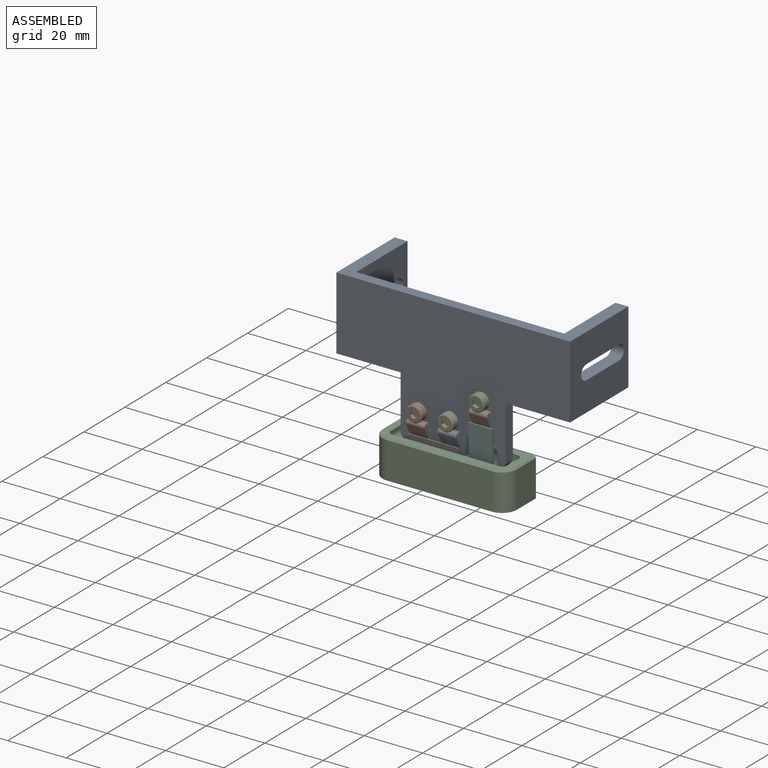
[diagram: assembled view]
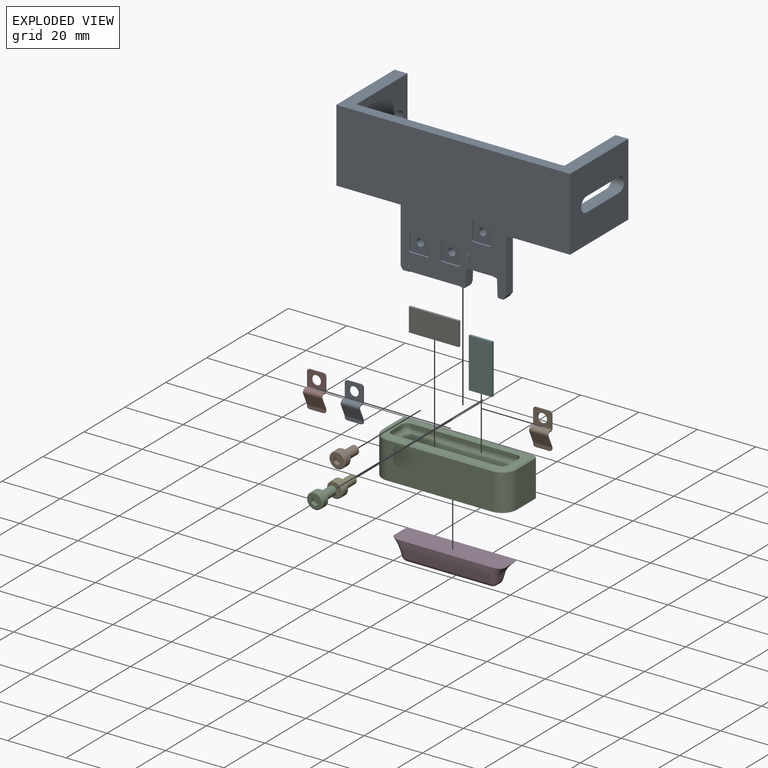
[diagram: exploded view]
GUIDED TOUR — MATED ASSEMBLY (Onshape document 838249ab933d371dc11ed068, AutoMate assembly 838249ab933d371dc11ed068_ae383e864f804d53fed47717_d57fe158612e764473231b34_default)

This assembly has 11 components, labeled P0..P10 below (a component is one placed occurrence of a part; the same part can appear more than once), held together by 10 mates. A mate is a constraint between two components; its type names the relative motion it leaves free:
  FASTENED — locks the two components together rigidly (no relative motion).
Axis/direction vectors are unit vectors and 'through' points are millimeter coordinates, both in the assembly's world frame.

MATES
  1. FASTENED "緊固 7": P10 <-> P1, direction (0.000, 1.000, 0.000) through (9.72, -19.17, -11.49) mm
  2. FASTENED "緊固 3": P8 <-> P0, direction (0.000, 1.000, 0.000) through (-0.88, -18.77, -20.49) mm
  3. FASTENED "緊固 4": P1 <-> P0, direction (0.000, 1.000, 0.000) through (9.72, -18.77, -11.49) mm
  4. FASTENED "緊固 10": P3 <-> P2, direction (0.000, 0.000, -1.000) through (0.02, -19.57, -38.09) mm
  5. FASTENED "緊固 8": P0 <-> P5, direction (0.000, -1.000, 0.000) through (9.72, -19.07, -19.19) mm
  6. FASTENED "緊固 2": P7 <-> P0, direction (0.000, 1.000, 0.000) through (-11.68, -18.77, -20.49) mm
  7. FASTENED "緊固 6": P4 <-> P8, direction (0.000, 1.000, 0.000) through (-0.88, -19.17, -20.39) mm
  8. FASTENED "緊固 5": P9 <-> P7, direction (0.000, 1.000, 0.000) through (-11.68, -19.17, -20.49) mm
  9. FASTENED "緊固 1": P6 <-> P0, direction (0.000, 1.000, 0.000) through (-6.28, -19.07, -28.19) mm
  10. FASTENED "緊固 9": P2 <-> P0, direction (0.000, 0.000, 1.000) through (0.02, -23.07, -28.09) mm

ASSEMBLY ORDER
  1. P2 — the base component [order heuristic]
  2. P3 — core [order heuristic]
  3. P6 [order verified]
  4. P4 [order verified]
  5. P8 [order verified]
  6. P5 [order verified]
  7. P10 [order verified]
  8. P1 [order verified]
  9. P9 [order verified]
  10. P7 [order verified]
  11. P0 [order verified]
Order-tag legend:
  [order verified] — this step's position reverses a verified removal order: the component was checked to insert without passing through the ones already placed.
  [order heuristic] — the first 2 components form the assembly's core: parts whose collision-free extraction could not be verified, listed in mate-graph order.

Of the 11 components, 3 carry the full construction recipe — the FeatureScript program that regenerates the part's solid from scratch; the rest are supplied as boundary geometry only.
Each toured component is shown spotlighted twice — in the assembled view, then in the exploded view, where a leader line traces a displaced component back to its assembled socket (saturated green if recipe-attached, orange if geometry-only; every other component desaturated gray) — followed by its recipe or geometry summary and the mates that hold it.
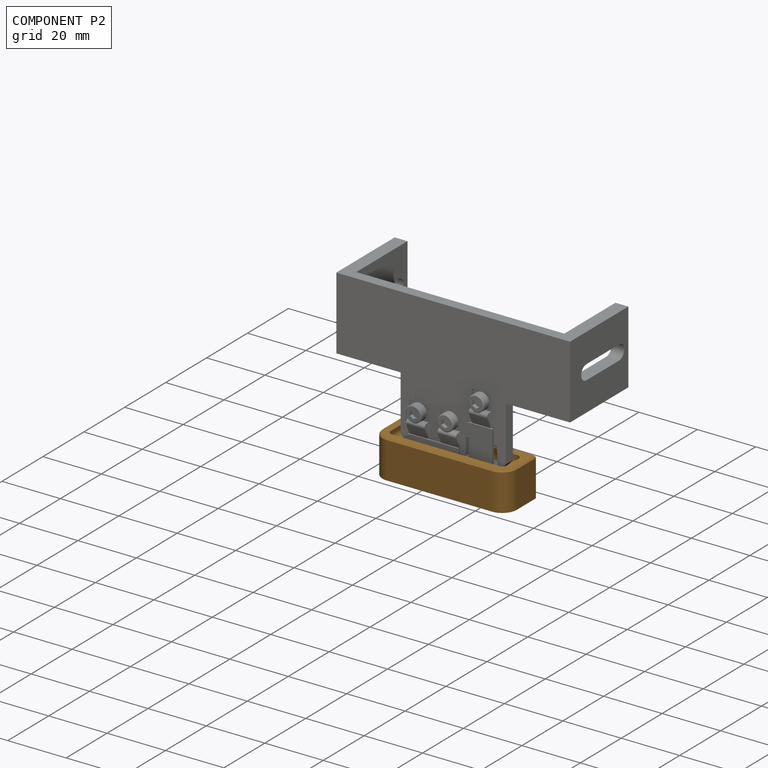
[diagram: component P2 — assembled]
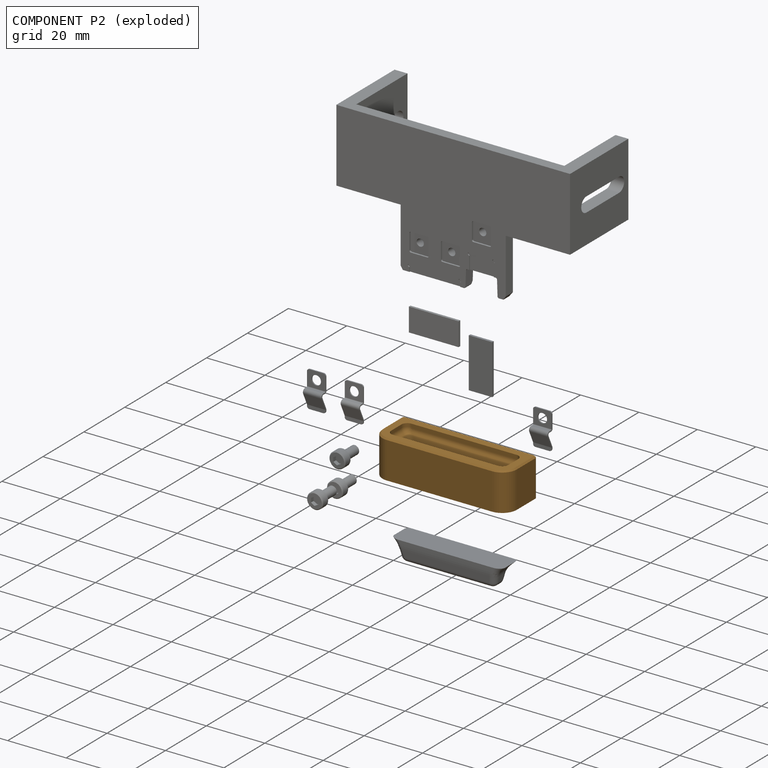
[diagram: component P2 — exploded]
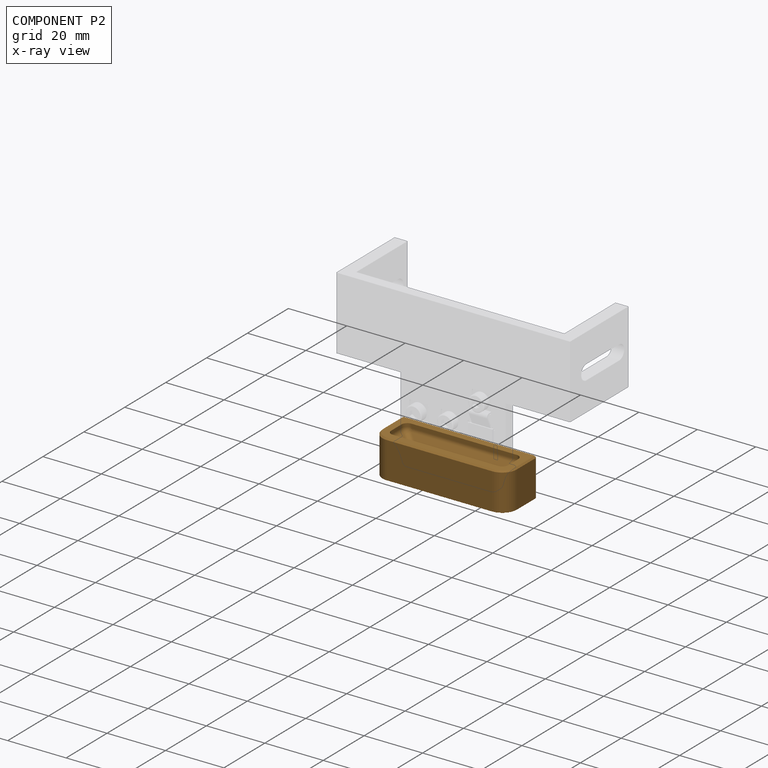
[diagram: component P2 — x-ray view]
COMPONENT P2 — geometry summary (no construction recipe available for this part):
  bounding box: 46.0 x 15.0 x 13.0 mm
  B-rep topology: 1 solid, 77 faces, 346 edges
  volume: 6275 mm^3 (70% of its bounding box)
  symmetry: mirror-symmetric across its x mid-plane
Held by: FASTENED mate "緊固 10" to P3; FASTENED mate "緊固 9" to P0.
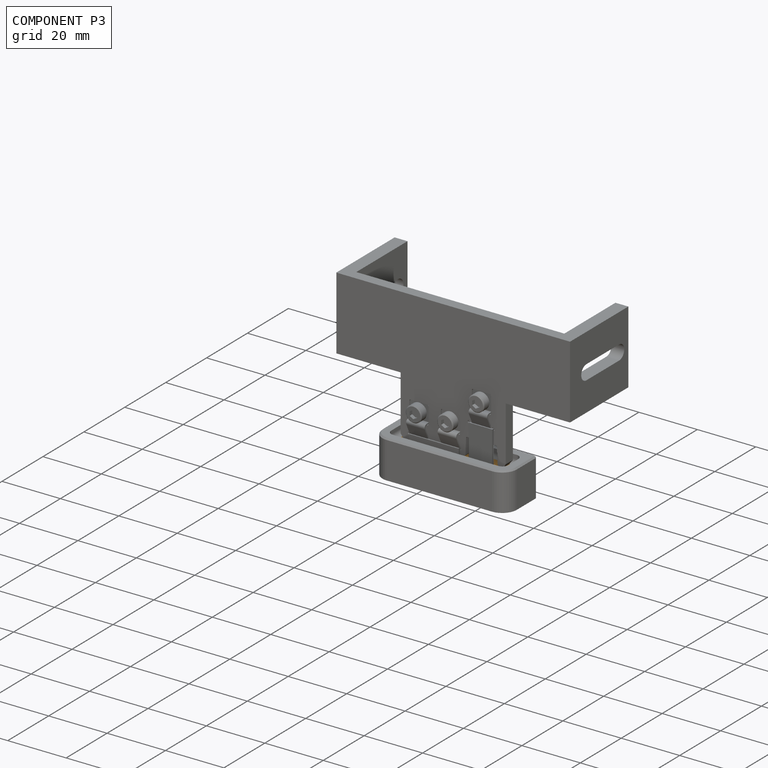
[diagram: component P3 — assembled]
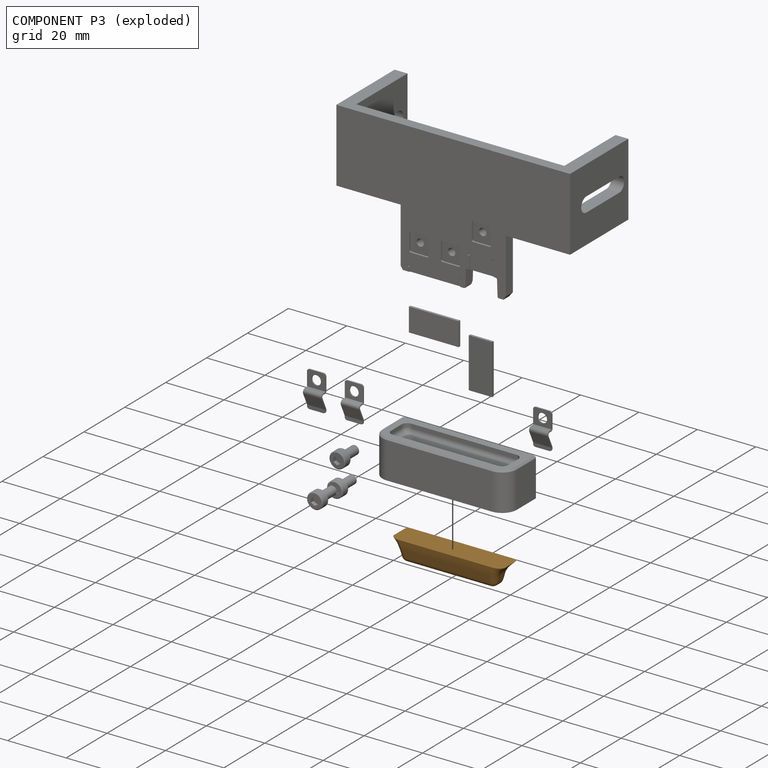
[diagram: component P3 — exploded]
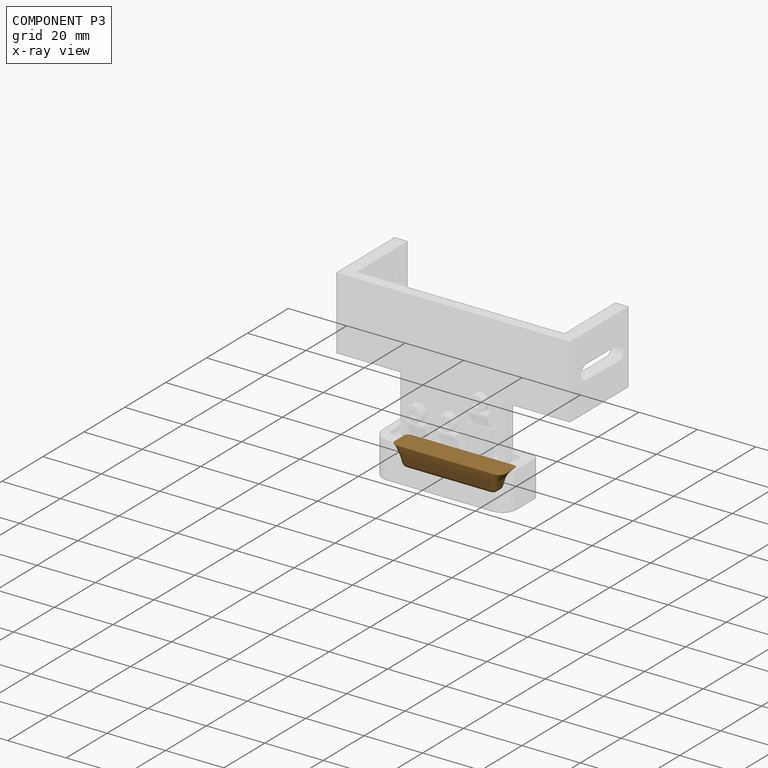
[diagram: component P3 — x-ray view]
COMPONENT P3 — geometry summary (no construction recipe available for this part):
  bounding box: 38.3 x 8.7 x 8.6 mm
  B-rep topology: 1 solid, 42 faces, 188 edges
  volume: 1491 mm^3 (52% of its bounding box)
  symmetry: mirror-symmetric across its x mid-plane
Held by: FASTENED mate "緊固 10" to P2.
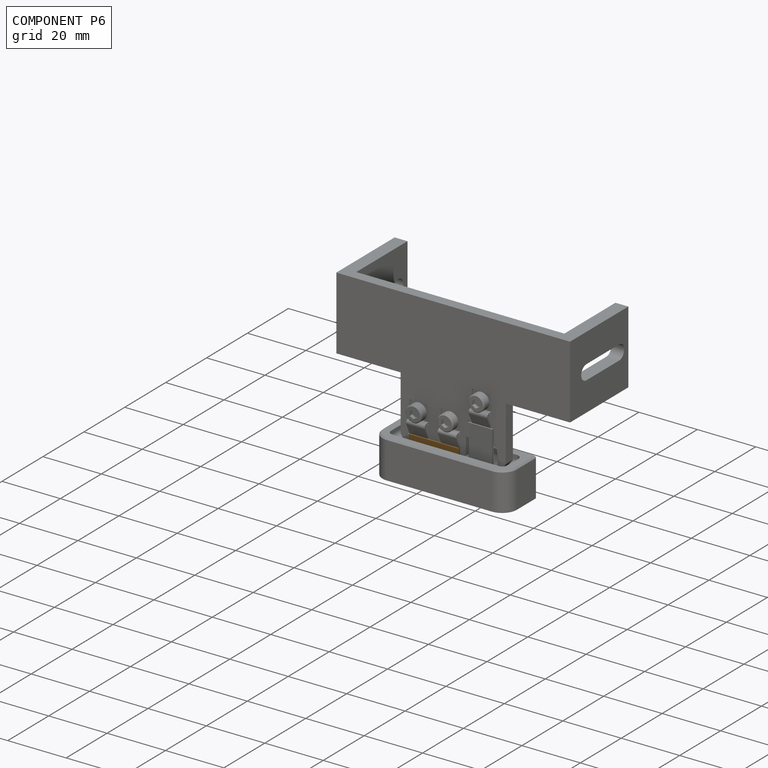
[diagram: component P6 — assembled]
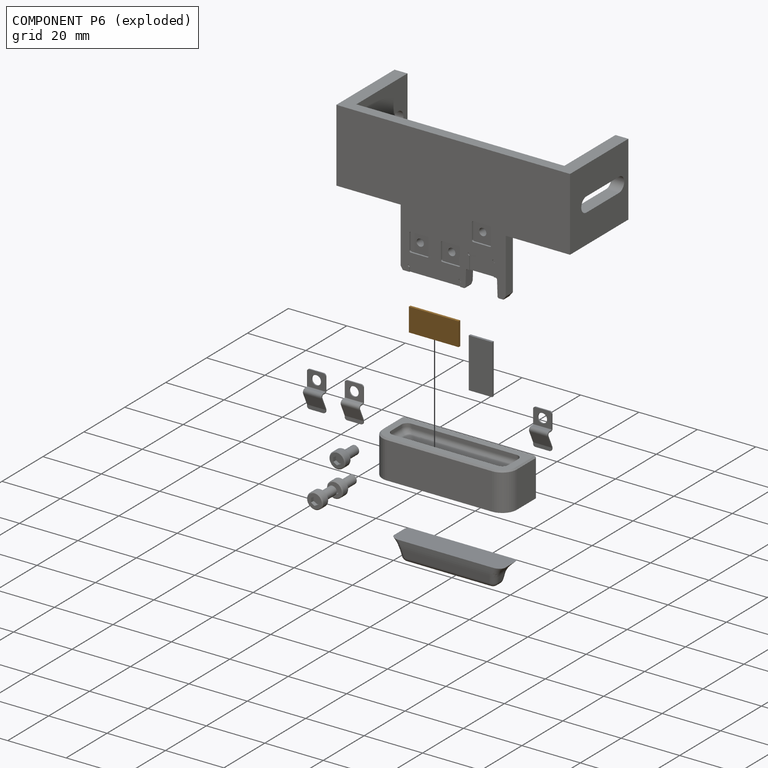
[diagram: component P6 — exploded]
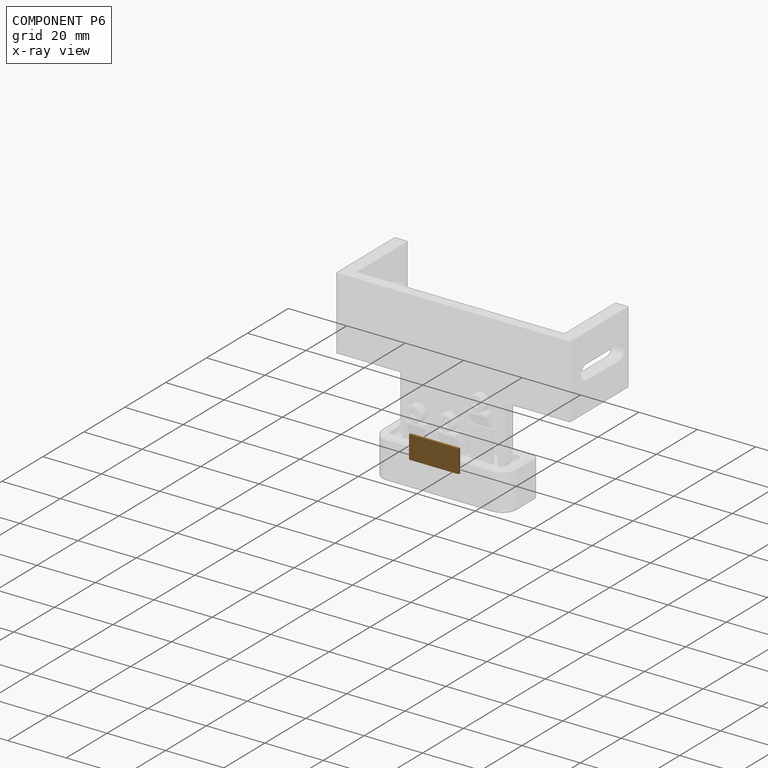
[diagram: component P6 — x-ray view]
COMPONENT P6 — geometry summary (no construction recipe available for this part):
  bounding box: 17.0 x 8.0 x 0.8 mm
  B-rep topology: 1 solid, 6 faces, 24 edges
  volume: 109 mm^3 (100% of its bounding box)
  symmetry: 2-fold rotationally symmetric about the x axis; 2-fold rotationally symmetric about the y axis; 2-fold rotationally symmetric about the z axis; mirror-symmetric across its x mid-plane, y mid-plane, z mid-plane
Held by: FASTENED mate "緊固 1" to P0.
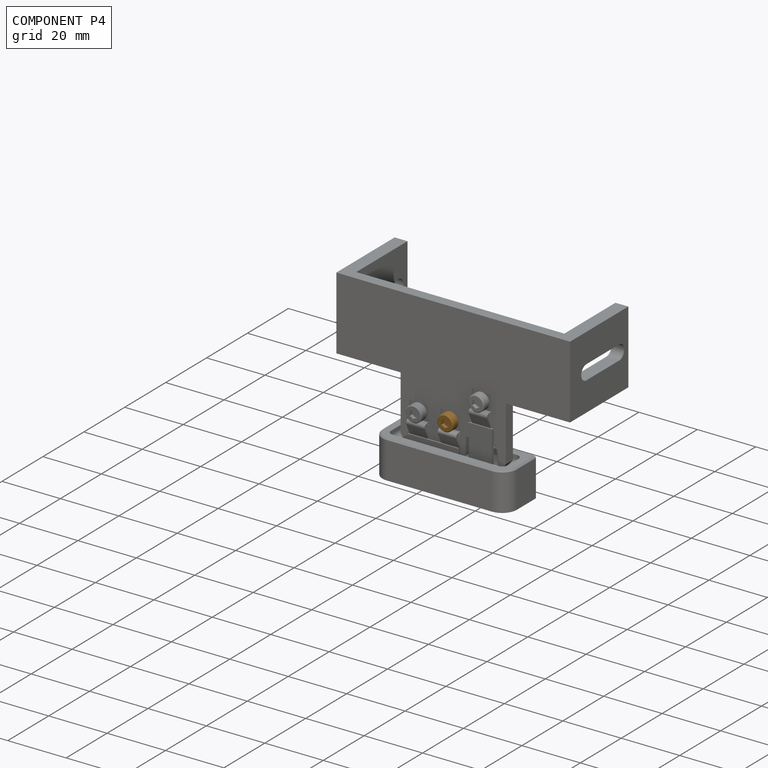
[diagram: component P4 — assembled]
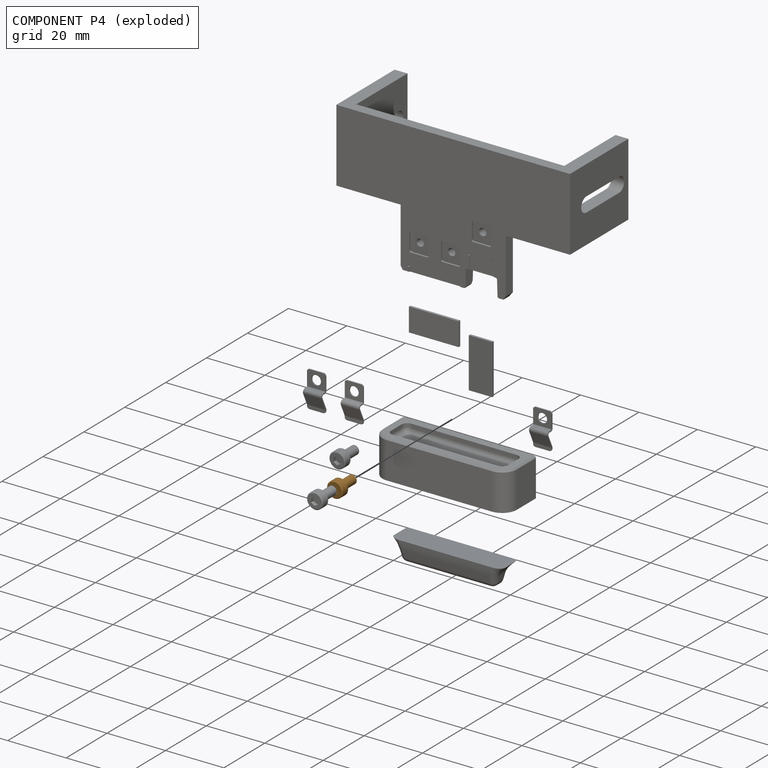
[diagram: component P4 — exploded]
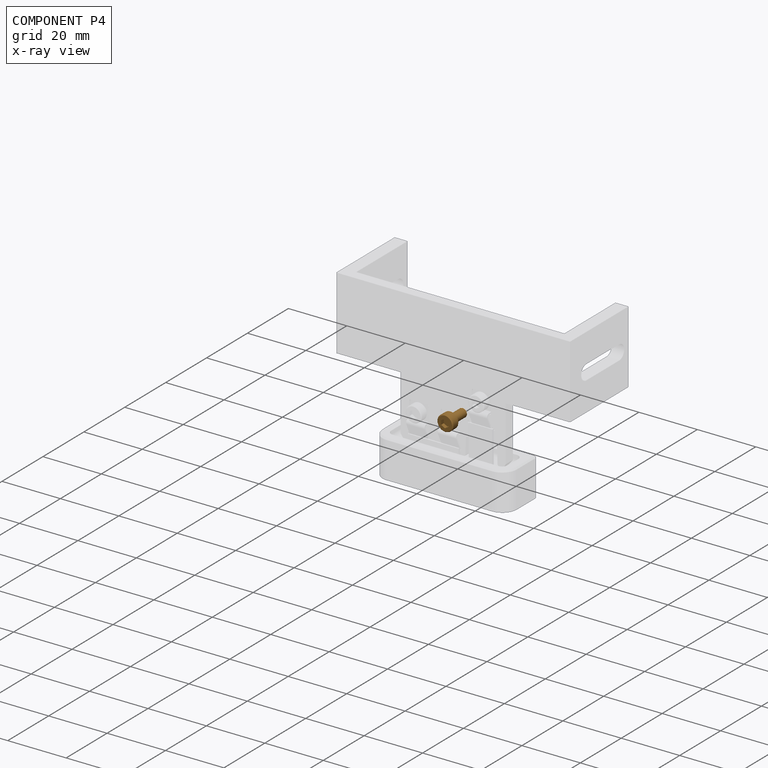
[diagram: component P4 — x-ray view]
COMPONENT P4 — geometry summary (no construction recipe available for this part):
  bounding box: 9.0 x 5.5 x 5.5 mm
  B-rep topology: 1 solid, 16 faces, 64 edges
  volume: 105 mm^3 (39% of its bounding box)
  symmetry: 6-fold rotationally symmetric about the z axis; mirror-symmetric across its x mid-plane, y mid-plane
Held by: FASTENED mate "緊固 6" to P8.
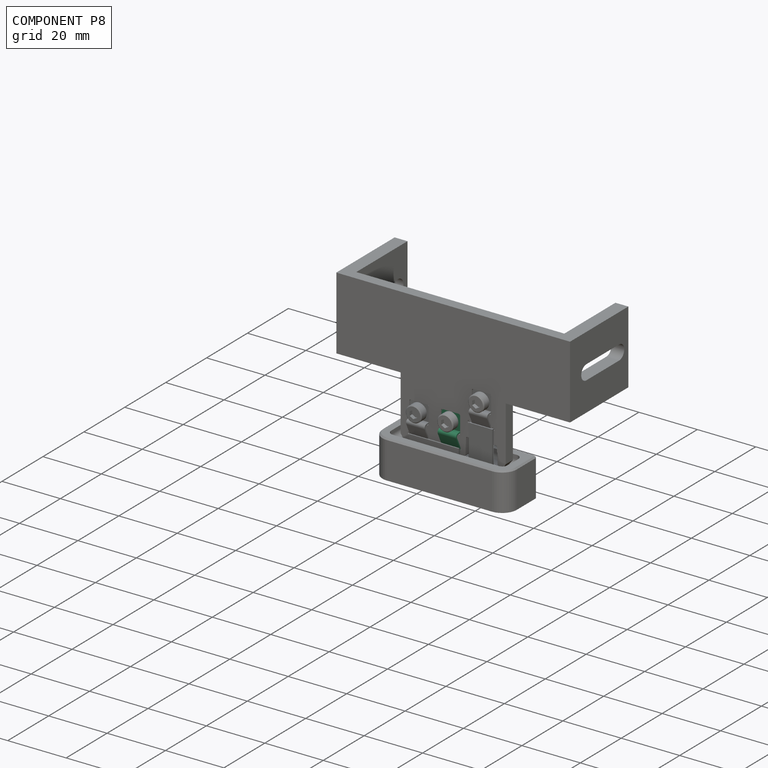
[diagram: component P8 — assembled]
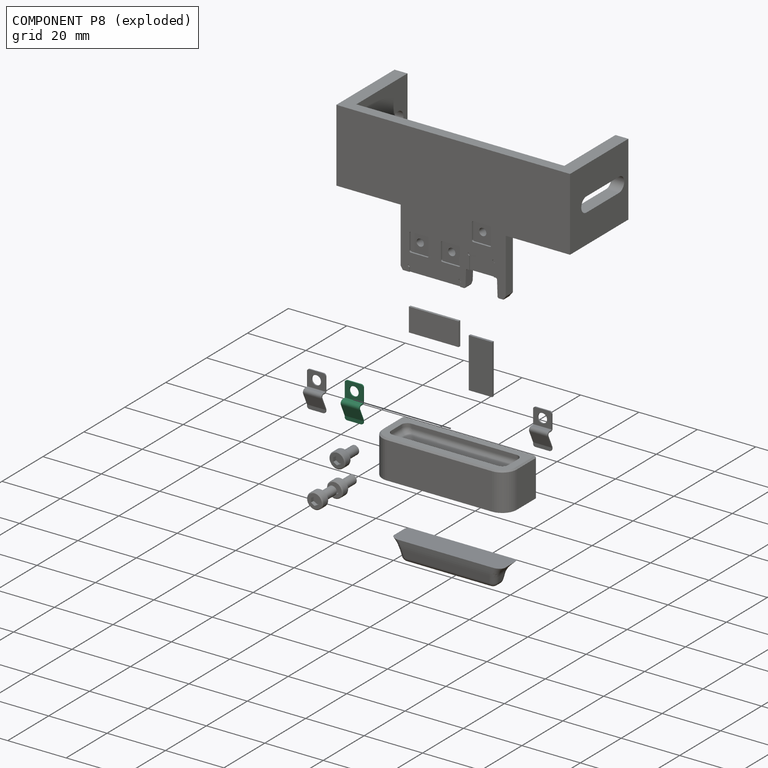
[diagram: component P8 — exploded]
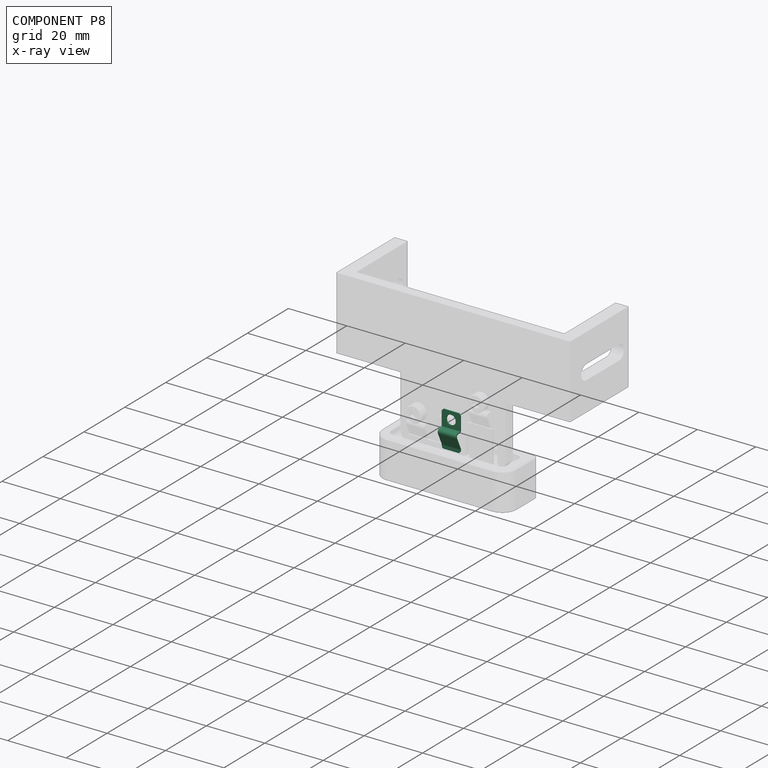
[diagram: component P8 — x-ray view]
COMPONENT P8 — same part as P1 (CADFS 00800632); its construction recipe is shown at P1.
Held by: FASTENED mate "緊固 3" to P0; FASTENED mate "緊固 6" to P4.
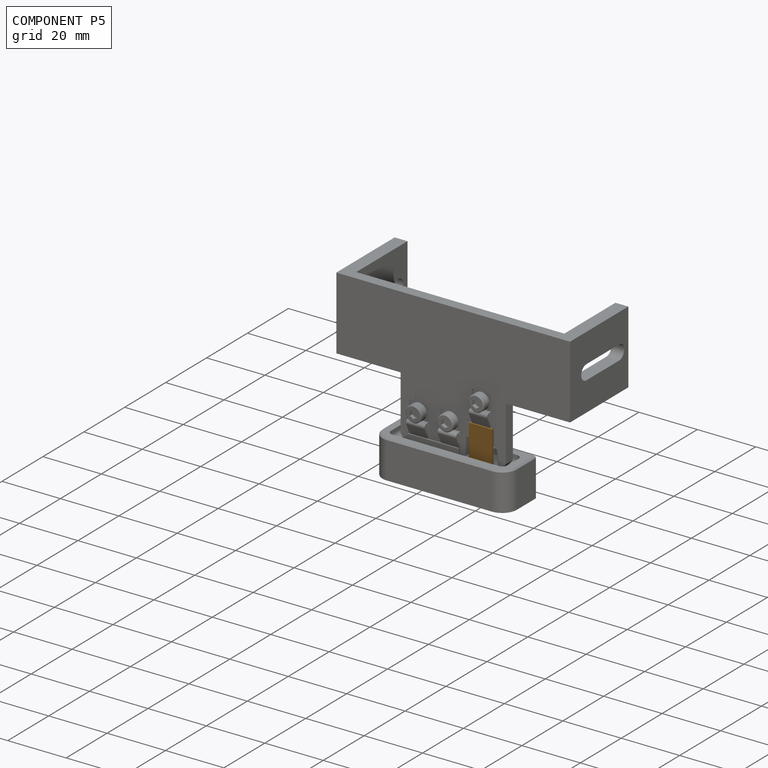
[diagram: component P5 — assembled]
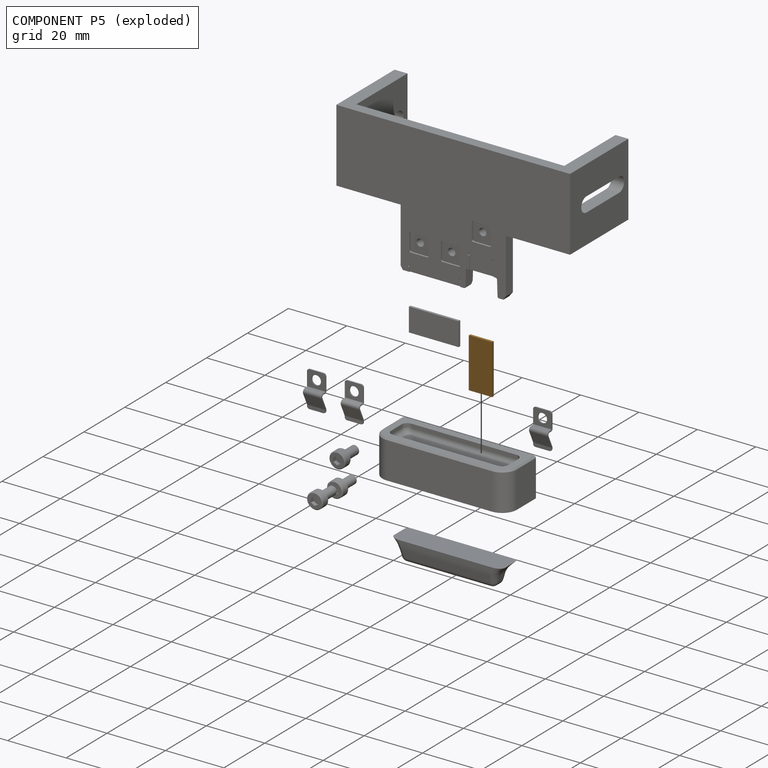
[diagram: component P5 — exploded]
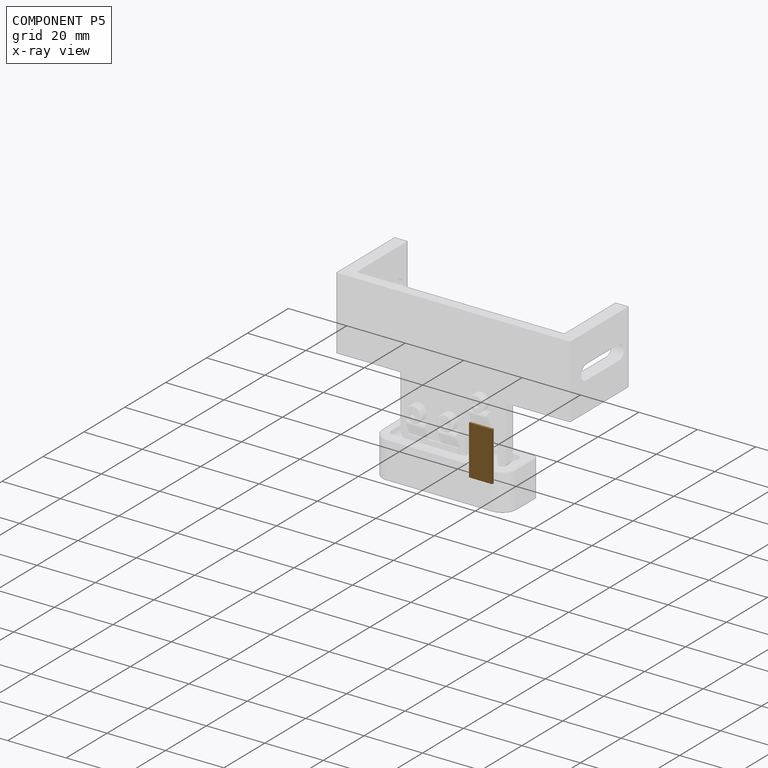
[diagram: component P5 — x-ray view]
COMPONENT P5 — geometry summary (no construction recipe available for this part):
  bounding box: 17.0 x 8.0 x 0.8 mm
  B-rep topology: 1 solid, 6 faces, 24 edges
  volume: 109 mm^3 (100% of its bounding box)
  symmetry: 2-fold rotationally symmetric about the x axis; 2-fold rotationally symmetric about the y axis; 2-fold rotationally symmetric about the z axis; mirror-symmetric across its x mid-plane, y mid-plane, z mid-plane
Held by: FASTENED mate "緊固 8" to P0.
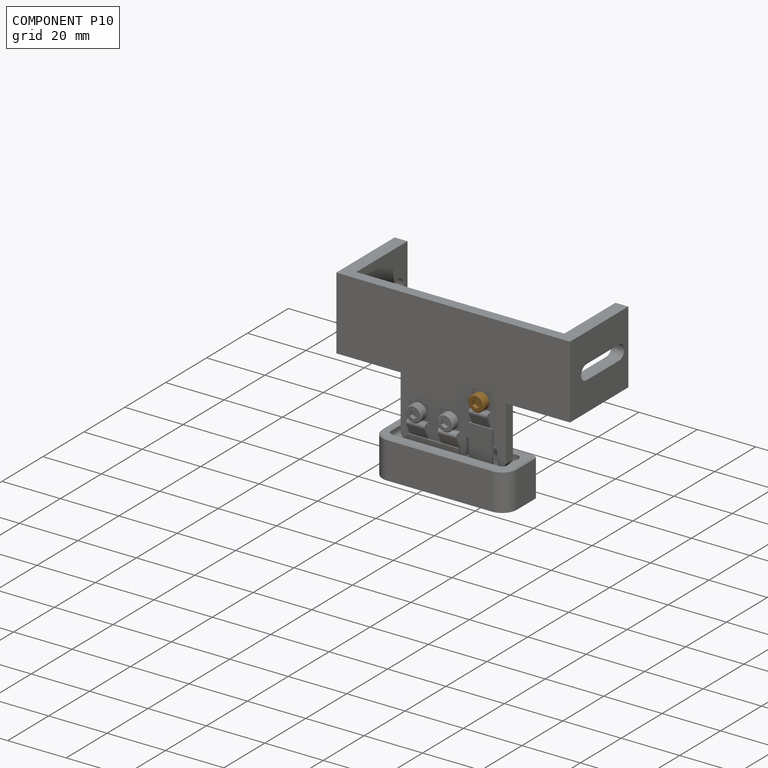
[diagram: component P10 — assembled]
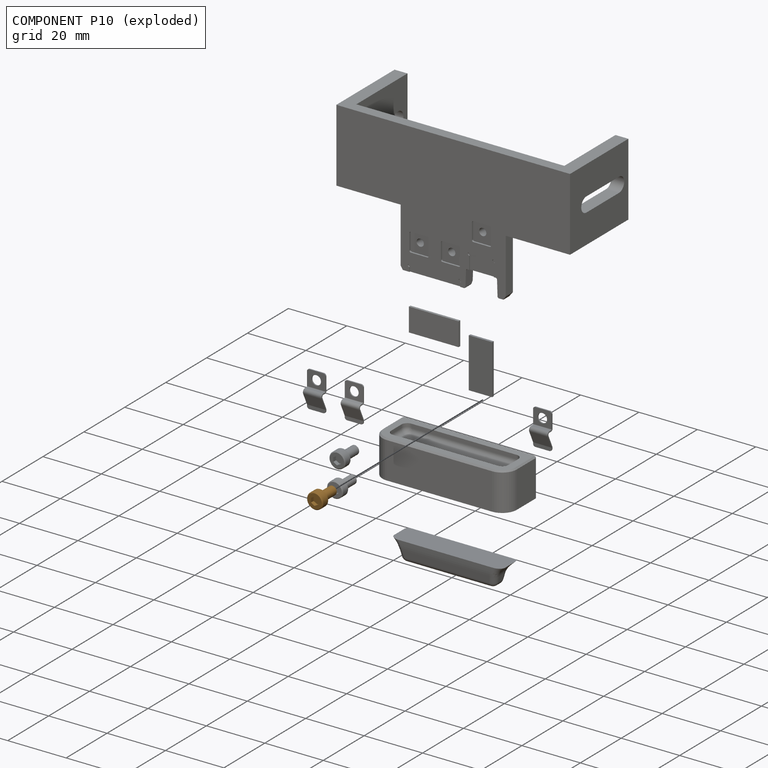
[diagram: component P10 — exploded]
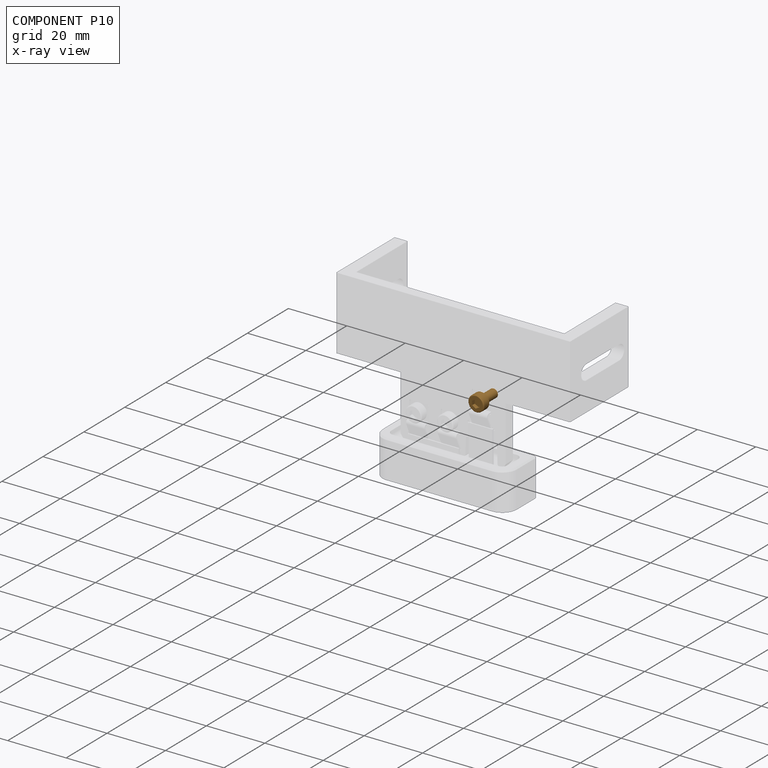
[diagram: component P10 — x-ray view]
COMPONENT P10 — geometry summary (no construction recipe available for this part):
  bounding box: 9.0 x 5.5 x 5.5 mm
  B-rep topology: 1 solid, 16 faces, 64 edges
  volume: 105 mm^3 (39% of its bounding box)
  symmetry: 6-fold rotationally symmetric about the z axis; mirror-symmetric across its x mid-plane, y mid-plane
Held by: FASTENED mate "緊固 7" to P1.
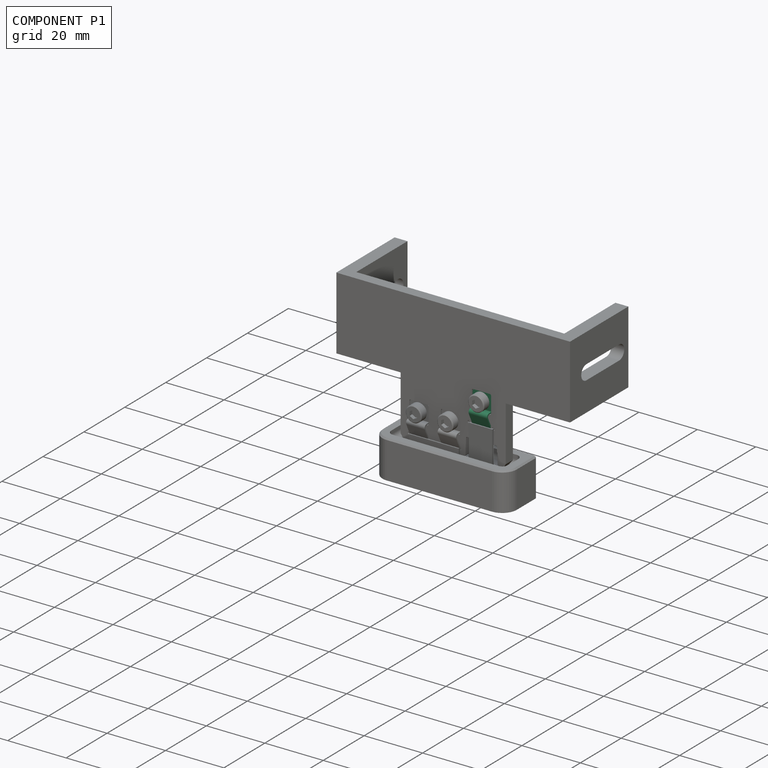
[diagram: component P1 — assembled]
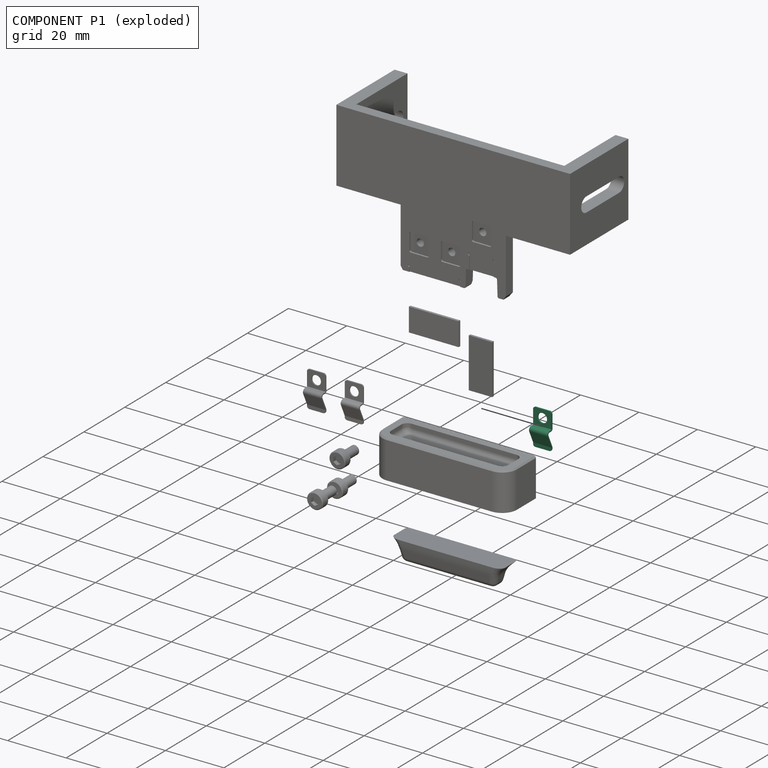
[diagram: component P1 — exploded]
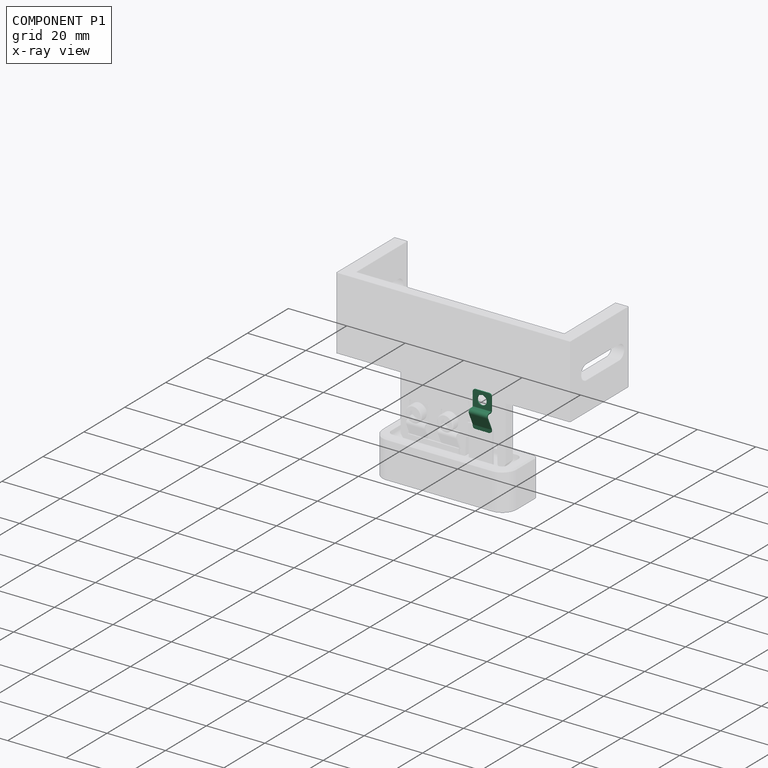
[diagram: component P1 — x-ray view]
COMPONENT P1 — recipe-attached (CADFS 00800632, mesh-verified: the recipe's output STEP matches this component's geometry to below the mesh-comparison resolution (tessellation chordal tolerance ~0.0211 mm)).
Held by: FASTENED mate "緊固 7" to P10; FASTENED mate "緊固 4" to P0.
Construction recipe (FeatureScript — the CAD program that rebuilds this solid; sketch coordinates are in the units given by the * unit suffixes, e.g. mm):

FeatureScript 1511;
import(path : "onshape/std/geometry.fs", version : "1511.0");
import(path : "onshape/std/common.fs", version : "1511.0");
const mm = millimeter;
const VERTEX = EntityType.VERTEX;
const EDGE = EntityType.EDGE;
const FACE = EntityType.FACE;
const BODY = EntityType.BODY;
function v(x, y){return vector(x, y);}
function OD(order){return orderDisambiguation(order);}
function OSD(set){return originalSetDisambiguation(set);}
function TD(topology){return topologyDisambiguation(topology);}
function TDD(query){return trueDependencyDisambiguation(query);}
function sQuery(a, b, c) {return sketchEntityQuery(a, b, c);}

annotation { "Feature Type Name" : "Feature", "Feature Type Description" : "" }
export const myFeature = defineFeature(function(context is Context, id is Id, definition is map)
    precondition{}
    {
        {
            var Q0;
            Q0=qCreatedBy(makeId("Right.planeOp"),FACE);
            var sketch = newSketch(context, id + "F0", { "sketchPlane" : qUnion([Q0])});
            skLineSegment(sketch, "E0", {"start": v(0, 0) * mm, "end": v(-5.4, 0) * mm});
            skLineSegment(sketch, "E1", {"start": v(-6, 0.6) * mm, "end": v(-6, 1.4) * mm});
            skLineSegment(sketch, "E2", {"start": v(-6.85, 1.94) * mm, "end": v(-11, 0) * mm});
            skLineSegment(sketch, "E3", {"start": v(-11, 0) * mm, "end": v(-12.33, 0) * mm});
            skLineSegment(sketch, "E4.0", {"start": v(0, 0.4) * mm, "end": v(-5.4, 0.4) * mm});
            skLineSegment(sketch, "E5.0", {"start": v(-5.6, 0.6) * mm, "end": v(-5.6, 1.4) * mm});
            skLineSegment(sketch, "E6.0", {"start": v(-7.02, 2.3) * mm, "end": v(-11.09, 0.4) * mm});
            skLineSegment(sketch, "E7.0", {"start": v(-11.09, 0.4) * mm, "end": v(-12.33, 0.4) * mm});
            skLineSegment(sketch, "E8", {"start": v(-12.33, 0) * mm, "end": v(-12.33, 0.4) * mm});
            skPoint(sketch, "E9.visualSharp", {"position": v(-6, 2.34) * mm});
            skArc(sketch, "E9.filletArc", {"start": v(-6, 1.4) * mm, "mid": v(-6.28, 1.9) * mm, "end": v(-6.85, 1.94) * mm});
            skArc(sketch, "E10.0", {"start": v(-5.6, 1.4) * mm, "mid": v(-6.06, 2.24) * mm, "end": v(-7.02, 2.3) * mm});
            skPoint(sketch, "E11.visualSharp", {"position": v(-5.6, 0.4) * mm});
            skArc(sketch, "E11.filletArc", {"start": v(-5.6, 0.6) * mm, "mid": v(-5.54, 0.46) * mm, "end": v(-5.4, 0.4) * mm});
            skPoint(sketch, "E12.visualSharp", {"position": v(-6, 0) * mm});
            skArc(sketch, "E12.filletArc", {"start": v(-6, 0.6) * mm, "mid": v(-5.82, 0.18) * mm, "end": v(-5.4, 0) * mm});
            skLineSegment(sketch, "E13", {"start": v(0, 0) * mm, "end": v(0, 0.4) * mm});
            skSolve(sketch);
        }
        {
            var Q0;
            Q0 = qSketchRegion(id + "F0", true);
            extrude(context, id + "F1", {"entities" : qUnion([Q0]), "endBound" : BoundingType.SYMMETRIC, "depth" : 6.35 * mm, "offsetDistance" : 25 * mm});
        }
        {
            var Q0;
            Q0=makeQuery(id+"F1.opExtrude","CAP_EDGE",EDGE,{"disambiguationData":[OSD([sQuery(id+"F0.wireOp",EDGE,"E8")])],"isStart":false});
            var Q1;
            Q1=makeQuery(id+"F1.opExtrude","CAP_EDGE",EDGE,{"disambiguationData":[OSD([sQuery(id+"F0.wireOp",EDGE,"E8")])],"isStart":true});
            var Q2;
            Q2=makeQuery(id+"F1.opExtrude","CAP_EDGE",EDGE,{"disambiguationData":[OSD([sQuery(id+"F0.wireOp",EDGE,"E13")])],"isStart":false});
            var Q3;
            Q3=makeQuery(id+"F1.opExtrude","CAP_EDGE",EDGE,{"disambiguationData":[OSD([sQuery(id+"F0.wireOp",EDGE,"E13")])],"isStart":true});
            fillet(context, id + "F2", {"entities" : qUnion([Q0, Q1, Q2, Q3]), "radius" : 0.8 * mm, "tangentPropagation" : true, "allowEdgeOverflow" : false});
        }
        {
            var Q0;
            Q0=makeQuery(id+"F1.opExtrude","SWEPT_FACE",FACE,{"disambiguationData":[OSD([sQuery(id+"F0.wireOp",EDGE,"E4.0")])]});
            var sketch = newSketch(context, id + "F3", { "sketchPlane" : qUnion([Q0])});
            skCircle(sketch, "E14", {"center": v(0, -2.8) * mm, "radius": 1.6 * mm});
            skSolve(sketch);
        }
        {
            var Q0;
            Q0=sQuery(id+"F3.wireOp",VERTEX,"E14.center");
            var Q1;
            Q1=makeQuery(id+"F1.opExtrude","SWEPT_BODY",BODY,{"disambiguationData":[OSD([sQuery(id+"F0.wireOp",EDGE,"E0"),sQuery(id+"F0.wireOp",EDGE,"E1"),sQuery(id+"F0.wireOp",EDGE,"E2"),sQuery(id+"F0.wireOp",EDGE,"E3"),sQuery(id+"F0.wireOp",EDGE,"E4.0"),sQuery(id+"F0.wireOp",EDGE,"E5.0"),sQuery(id+"F0.wireOp",EDGE,"E6.0"),sQuery(id+"F0.wireOp",EDGE,"E7.0"),sQuery(id+"F0.wireOp",EDGE,"E8"),sQuery(id+"F0.wireOp",EDGE,"E9.filletArc"),sQuery(id+"F0.wireOp",EDGE,"E10.0"),sQuery(id+"F0.wireOp",EDGE,"E11.filletArc"),sQuery(id+"F0.wireOp",EDGE,"E12.filletArc"),sQuery(id+"F0.wireOp",EDGE,"E13")])]});
            hole(context, id + "F4", {"style" : HoleStyle.SIMPLE, "endStyle" : HoleEndStyle.THROUGH, "holeDiameter" : 3.2 * mm, "majorDiameter" : 5 * mm, "isTappedThrough" : true, "tappedDepth" : 12 * mm, "tapClearance" : 3, "locations" : qUnion([Q0]), "scope" : qUnion([Q1])});
        }
    });
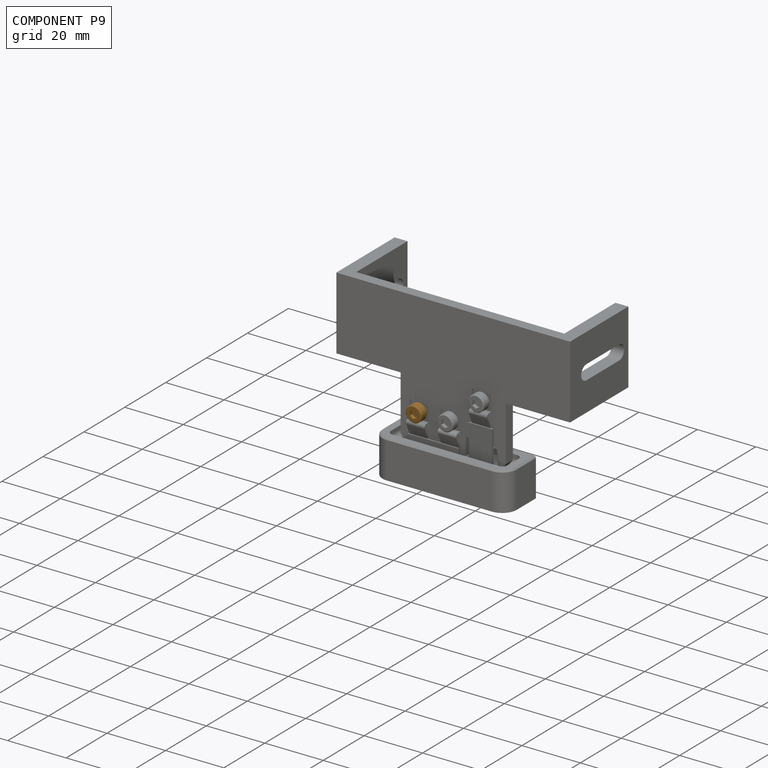
[diagram: component P9 — assembled]
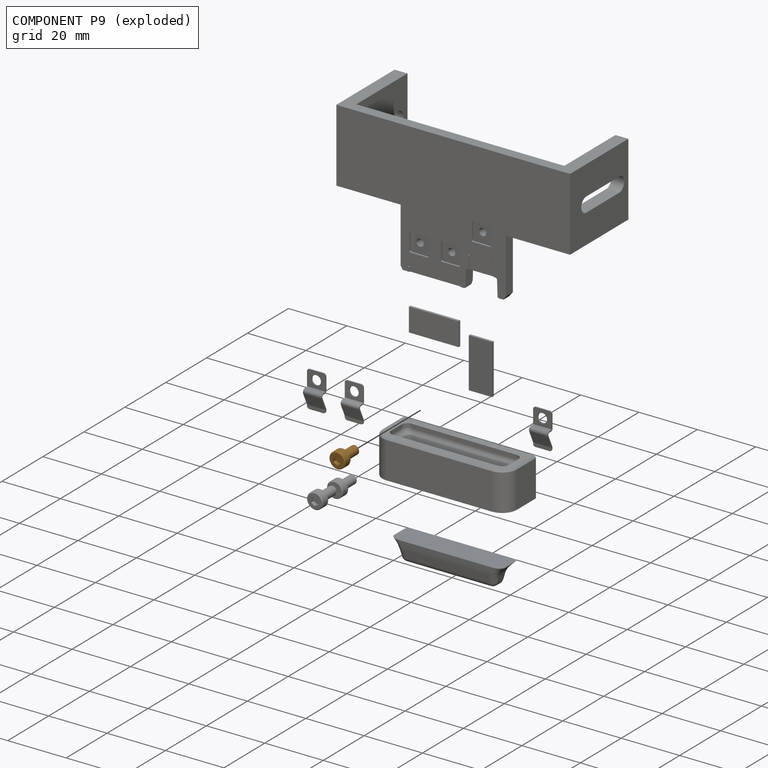
[diagram: component P9 — exploded]
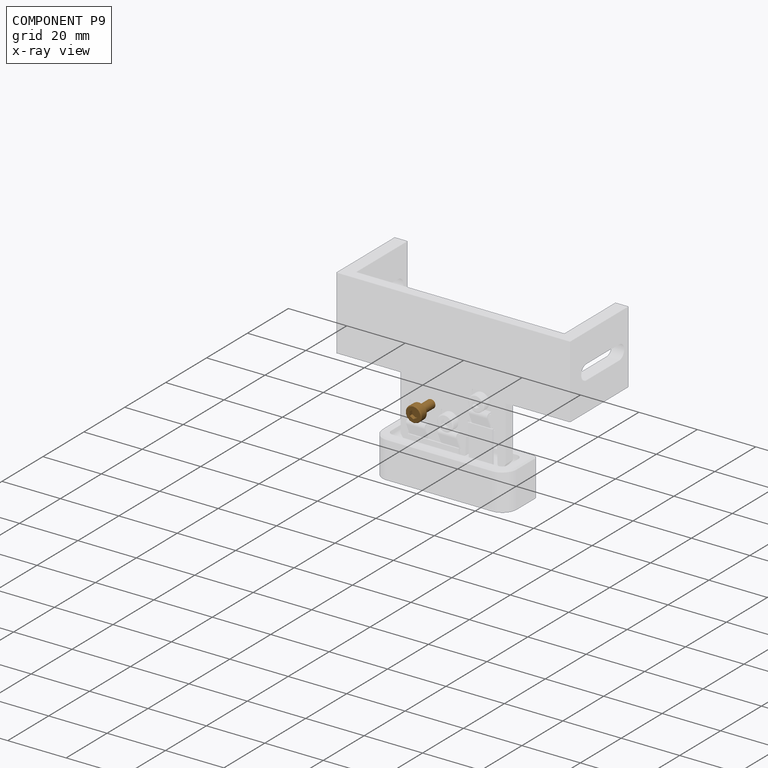
[diagram: component P9 — x-ray view]
COMPONENT P9 — geometry summary (no construction recipe available for this part):
  bounding box: 9.0 x 5.5 x 5.5 mm
  B-rep topology: 1 solid, 16 faces, 64 edges
  volume: 105 mm^3 (39% of its bounding box)
  symmetry: 6-fold rotationally symmetric about the z axis; mirror-symmetric across its x mid-plane, y mid-plane
Held by: FASTENED mate "緊固 5" to P7.
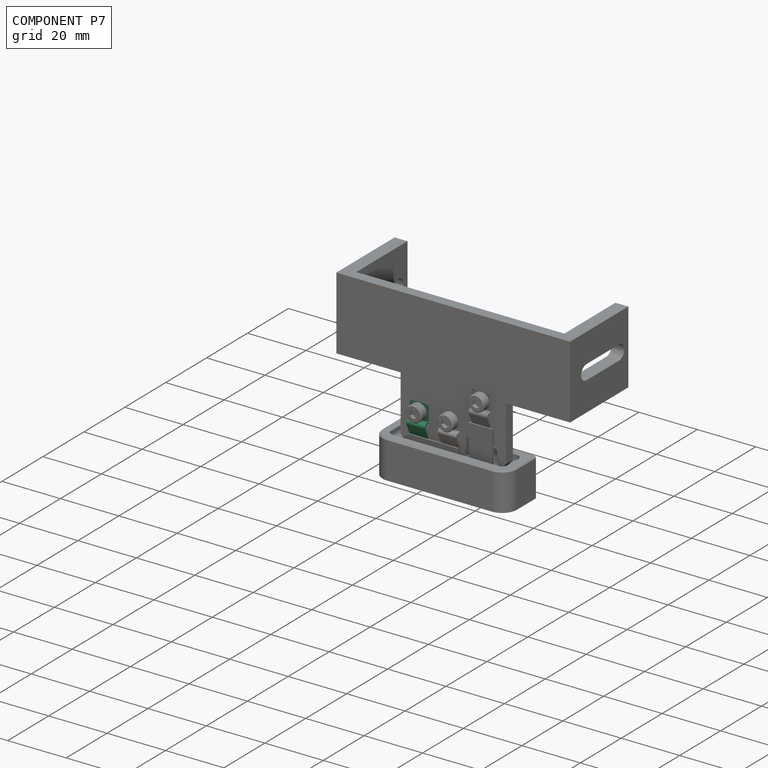
[diagram: component P7 — assembled]
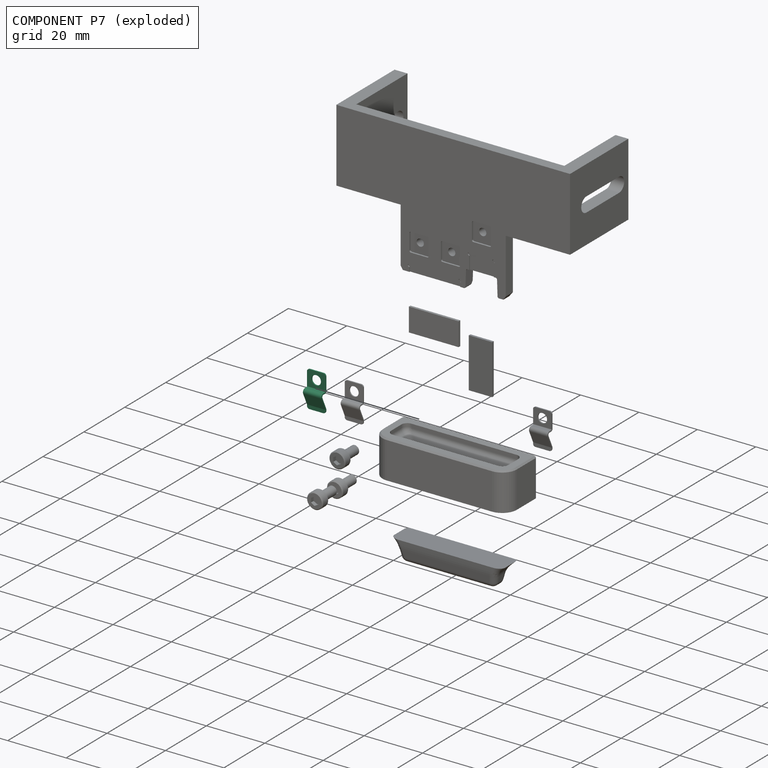
[diagram: component P7 — exploded]
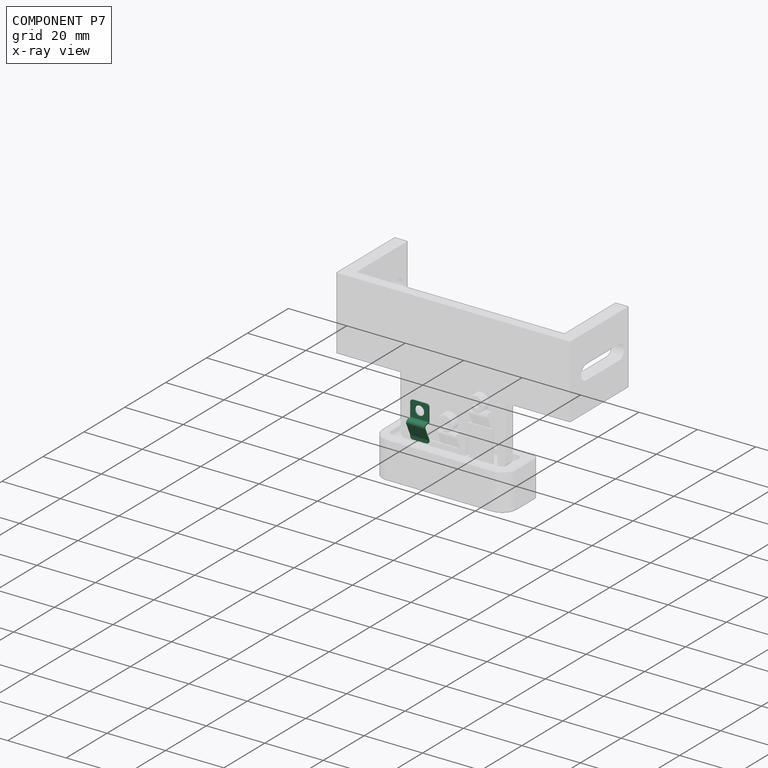
[diagram: component P7 — x-ray view]
COMPONENT P7 — same part as P1 (CADFS 00800632); its construction recipe is shown at P1.
Held by: FASTENED mate "緊固 2" to P0; FASTENED mate "緊固 5" to P9.
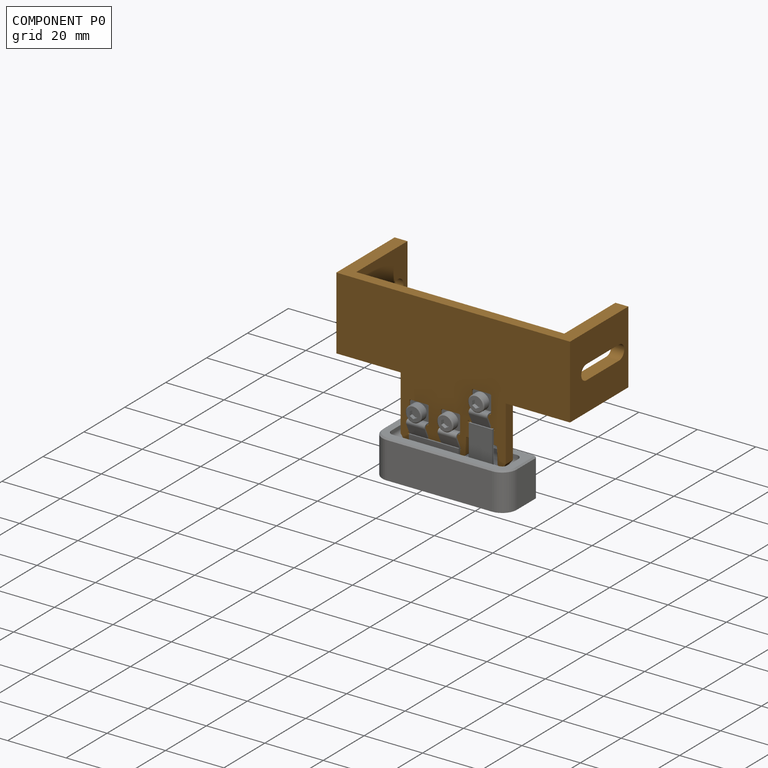
[diagram: component P0 — assembled]
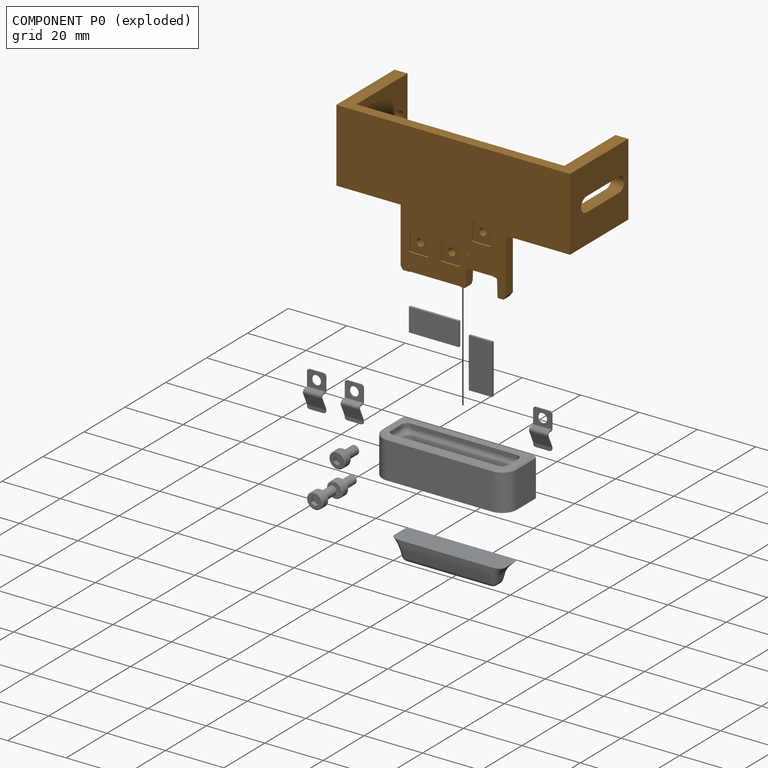
[diagram: component P0 — exploded]
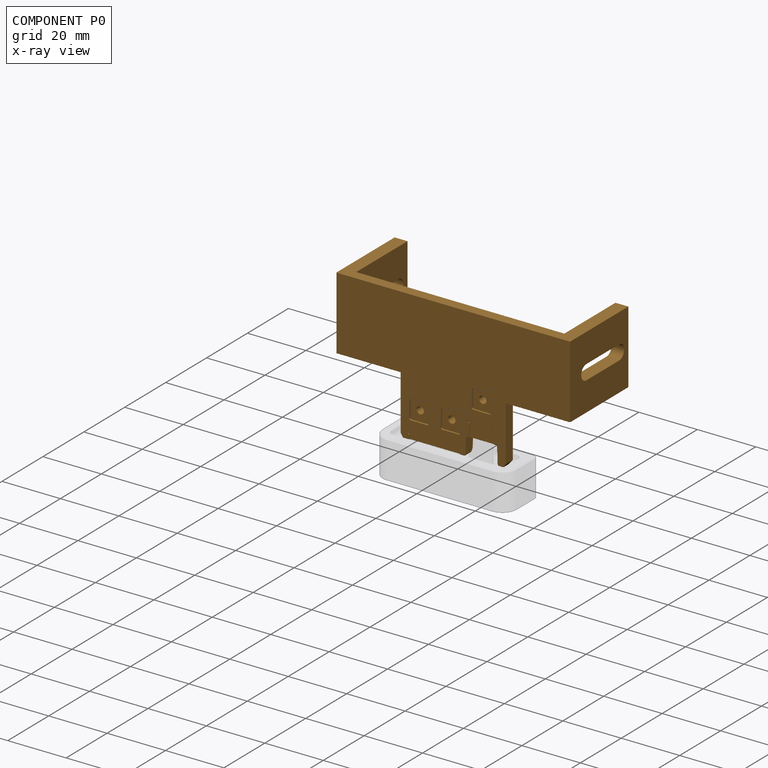
[diagram: component P0 — x-ray view]
COMPONENT P0 — geometry summary (no construction recipe available for this part):
  bounding box: 80.0 x 45.0 x 28.5 mm
  B-rep topology: 1 solid, 76 faces, 428 edges
  volume: 13756 mm^3 (13% of its bounding box)
Held by: FASTENED mate "緊固 3" to P8; FASTENED mate "緊固 4" to P1; FASTENED mate "緊固 8" to P5; FASTENED mate "緊固 2" to P7; FASTENED mate "緊固 1" to P6; FASTENED mate "緊固 9" to P2.
PROVENANCE & LICENSES
Assembly (occurrences, transforms, mates, per-part STEP geometry): AutoMate dataset, Zenodo record 7776208, CC0.
Construction recipes: CADFS (HuggingFace VladPyatov/CADFS, CC-BY-4.0, layered over the ABC dataset), FeatureScript reconstruction programs keyed by ABC model id.
Join: ABC meta listings map ABC model id -> Onshape documentId; within a shared document, parts are matched by geometric signature (bounding-box dims + volume at 0.1% relative tolerance, exact B-rep face/solid counts).
Verification: 3 of this assembly's 11 components carry a recipe attachment, and every attachment is mesh-verified: the CADFS STEP and the AutoMate member STEP were compared as meshes in their shared local frame (symmetric sampled-point-to-mesh distance); worst across the 3 attachments: below the mesh-comparison resolution (tessellation chordal tolerance ~0.0211 mm) on a 14 mm part.
Renders: orthographic iso camera (az 35 / el 25); the floor grid conveys scale (grid pitch printed in each image; no ruler). In the exploded view each component is displaced by its stored offset vector: the offsets alone carry the explosion direction (mate normal/axis signs are not orientation cues and do not encode it), and separation distances are assigned per mate-chain, not proportionally to assembly-order depth.
